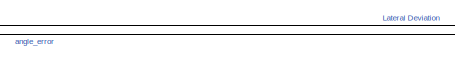
[diagram: root canvas - part 1/6, top center region]
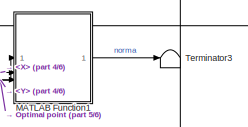
[diagram: root canvas - part 2/6, top right region]
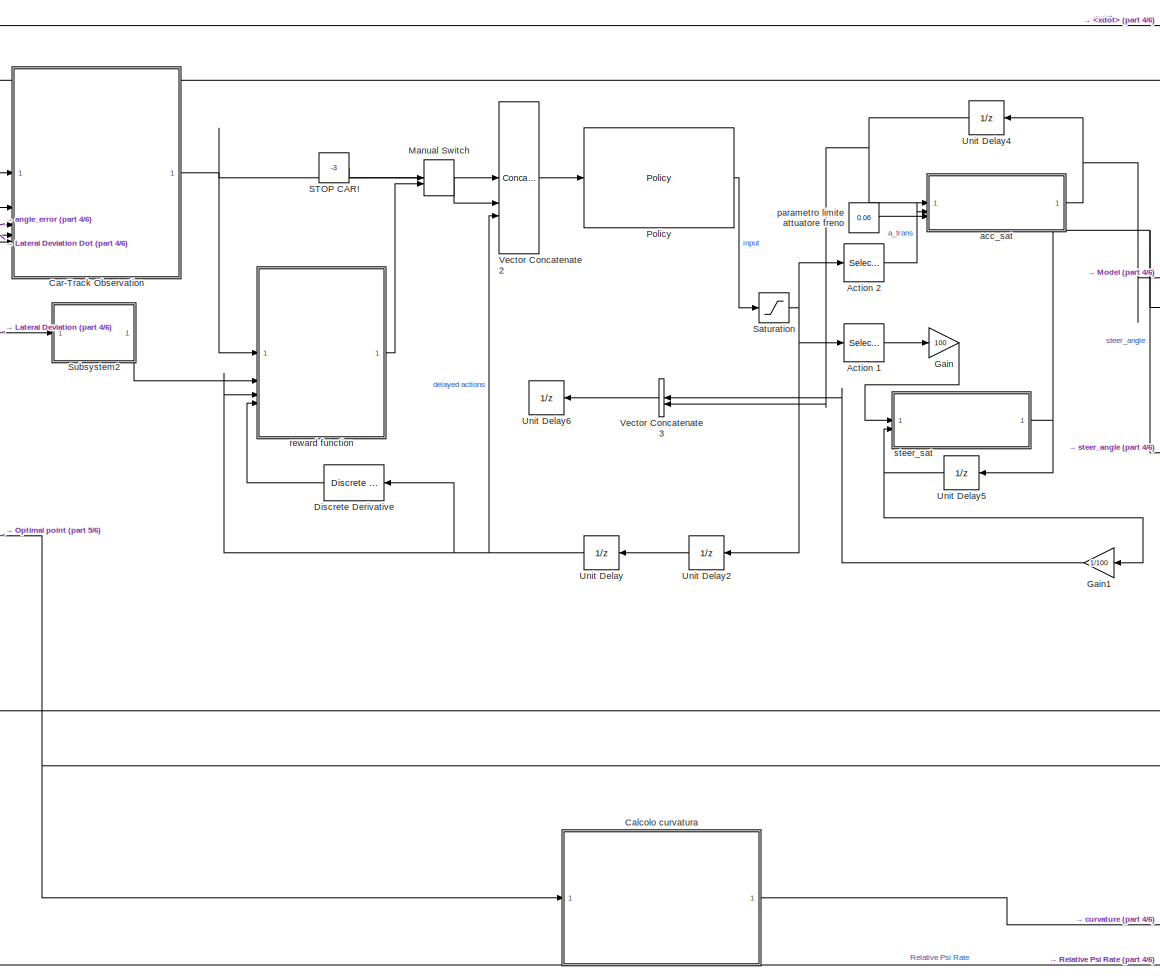
[diagram: root canvas - part 3/6, central region]
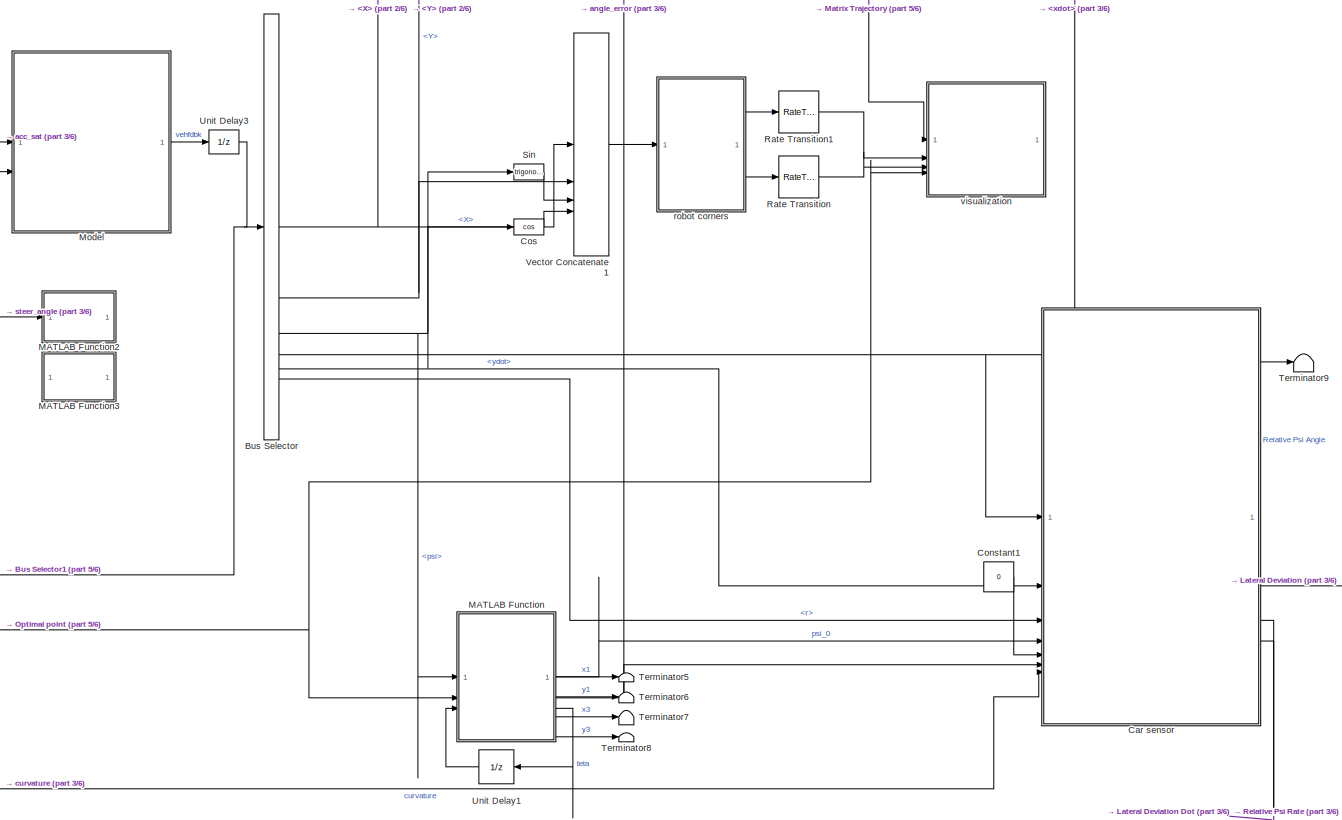
[diagram: root canvas - part 4/6, middle right region]
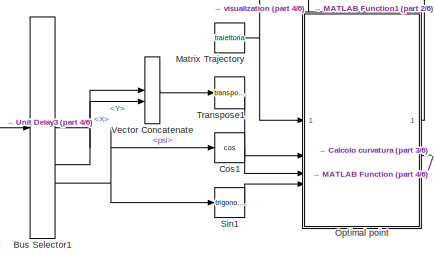
[diagram: root canvas - part 5/6, middle left region]
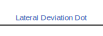
[diagram: root canvas - part 6/6, bottom center region]
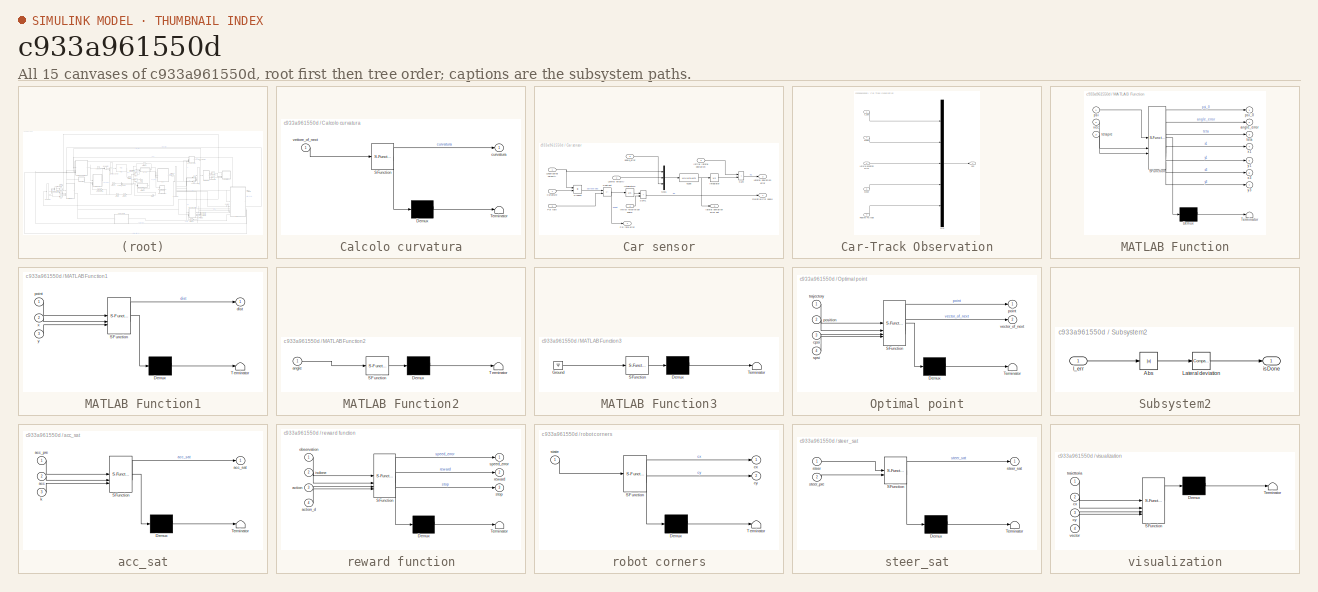
[diagram: thumbnail index - all 15 canvases of the model, root first then tree order]
MODEL slx_c933a961550d
KIND model
CONFIG AbsTol = auto
CONFIG EnableMultiTasking = off
CONFIG FixedStep = 0.05
CONFIG MaxStep = auto
CONFIG MinStep = auto
CONFIG RelTol = 1e-3
CONFIG SampleTimeConstraint = Unconstrained
CONFIG SolverName = VariableStepAuto
CONFIG StartTime = 0.0
CONFIG StopTime = 10
BLOCK [Selector] Action 1
  IndexOptions = Index vector (dialog)
  Indices = 1
  InputPortWidth = 2
  OutputSizes = 1
BLOCK [Selector] Action 2
  IndexOptions = Index vector (dialog)
  Indices = 2
  InputPortWidth = 2
  OutputSizes = 1
BLOCK [BusSelector] Bus Selector
  OutputSignals = InertFrm.Cg.Disp.X,InertFrm.Cg.Disp.Y,InertFrm.Cg.Ang.psi,BdyFrm.Cg.Vel.xdot,BdyFrm.Cg.Vel.ydot,BdyFrm.Cg.AngVel.r
BLOCK [BusSelector] Bus Selector1
  OutputSignals = InertFrm.Cg.Disp.X,InertFrm.Cg.Disp.Y,InertFrm.Cg.Ang.psi
BLOCK [SubSystem] Calcolo curvatura
  ErrorFcn = Stateflow.Translate.translate
  LibrarySourceBlock = simulink/User-Defined\nFunctions/MATLAB Function
  PermitHierarchicalResolution = ExplicitOnly
  SFBlockType = MATLAB Function
  TreatAsAtomicUnit = on
BLOCK [Demux] Calcolo curvatura/ Demux 
  Outputs = 1
BLOCK [S-Function] Calcolo curvatura/ SFunction 
  EnableBusSupport = on
  FunctionName = sf_sfun
  PortCounts = [1 2]
  SFcnIsStateOwnerBlock = off
  SFunctionDeploymentMode = off
  Tag = Stateflow S-Function 7
BLOCK [Terminator] Calcolo curvatura/ Terminator 
BLOCK [Outport] Calcolo curvatura/curvatura
BLOCK [Inport] Calcolo curvatura/vettore_of_next
BLOCK [SubSystem] Car sensor
BLOCK [Inport] Car sensor/Curvature
  Port = 7
BLOCK [Inport] Car sensor/Initial lateral deviation
  Port = 5
BLOCK [Inport] Car sensor/Initial relative psi angle
  Port = 4
BLOCK [Integrator] Car sensor/Integrator
BLOCK [Integrator] Car sensor/Integrator2
BLOCK [Outport] Car sensor/Lateral deviation error
  Port = 2
  VectorParamsAs1DForOutWhenUnconnected = off
BLOCK [Inport] Car sensor/Lateral velocity
  Port = 2
BLOCK [Inport] Car sensor/Longitudinal velocity
BLOCK [Mux] Car sensor/Mux1
  DisplayOption = bar
  Inputs = [1 1 1]
BLOCK [Product] Car sensor/Product
BLOCK [Inport] Car sensor/Psi rate
  Port = 3
BLOCK [Outport] Car sensor/Psi rate error
  Port = 4
  VectorParamsAs1DForOutWhenUnconnected = off
BLOCK [Outport] Car sensor/Relative Psi angle
  VectorParamsAs1DForOutWhenUnconnected = off
BLOCK [Sum] Car sensor/Subtract
  IconShape = rectangular
  Inputs = -+
BLOCK [Sum] Car sensor/Sum
  IconShape = rectangular
BLOCK [Sum] Car sensor/Sum1
  IconShape = rectangular
BLOCK [Inport] Car sensor/angle_error
  Port = 6
BLOCK [Fcn] Car sensor/e1dot
  Expr = u(1)*u(3)+u(2)
BLOCK [Outport] Car sensor/lateral deviation error dot
  Port = 3
  VectorParamsAs1DForOutWhenUnconnected = off
BLOCK [SubSystem] Car-Track Observation
BLOCK [Inport] Car-Track Observation/Lateral deviation error
  Port = 2
BLOCK [Mux] Car-Track Observation/Mux
  DisplayOption = bar
  Inputs = 5
BLOCK [Inport] Car-Track Observation/Relative Psi Angle
  Port = 3
BLOCK [Inport] Car-Track Observation/e1dot
  Port = 4
BLOCK [Inport] Car-Track Observation/e2dot
  Port = 5
BLOCK [Outport] Car-Track Observation/obs
  VectorParamsAs1DForOutWhenUnconnected = off
BLOCK [Inport] Car-Track Observation/x_dot
BLOCK [Constant] Constant1
  Value = 0
BLOCK [Trigonometry] Cos
  Operator = cos
BLOCK [Trigonometry] Cos1
  Operator = cos
BLOCK [Reference] Discrete Derivative  REF=simulink/Discrete/Discrete Derivative
  SourceBlock = simulink/Discrete/Discrete Derivative
  SourceType = Discrete Derivative
BLOCK [Gain] Gain
  Gain = 100
BLOCK [Gain] Gain1
  Gain = 1/100
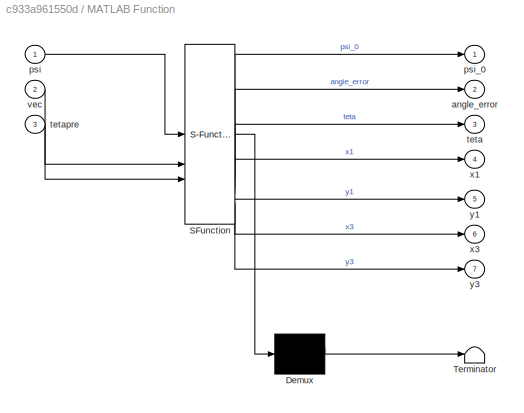
BLOCK [SubSystem] MATLAB Function
  ErrorFcn = Stateflow.Translate.translate
  LibrarySourceBlock = simulink/User-Defined\nFunctions/MATLAB Function
  PermitHierarchicalResolution = ExplicitOnly
  SFBlockType = MATLAB Function
  TreatAsAtomicUnit = on
BLOCK [Demux] MATLAB Function/ Demux 
  Outputs = 1
BLOCK [S-Function] MATLAB Function/ SFunction 
  EnableBusSupport = on
  FunctionName = sf_sfun
  PortCounts = [3 8]
  SFcnIsStateOwnerBlock = off
  SFunctionDeploymentMode = off
  Tag = Stateflow S-Function 1
BLOCK [Terminator] MATLAB Function/ Terminator 
BLOCK [Outport] MATLAB Function/angle_error
  Port = 2
BLOCK [Inport] MATLAB Function/psi
BLOCK [Outport] MATLAB Function/psi_0
BLOCK [Outport] MATLAB Function/teta
  Port = 3
BLOCK [Inport] MATLAB Function/tetapre
  Port = 3
BLOCK [Inport] MATLAB Function/vec
  Port = 2
BLOCK [Outport] MATLAB Function/x1
  Port = 4
BLOCK [Outport] MATLAB Function/x3
  Port = 6
BLOCK [Outport] MATLAB Function/y1
  Port = 5
BLOCK [Outport] MATLAB Function/y3
  Port = 7
BLOCK [SubSystem] MATLAB Function1
  Commented = on
  ErrorFcn = Stateflow.Translate.translate
  LibrarySourceBlock = simulink/User-Defined\nFunctions/MATLAB Function
  PermitHierarchicalResolution = ExplicitOnly
  SFBlockType = MATLAB Function
  TreatAsAtomicUnit = on
BLOCK [Demux] MATLAB Function1/ Demux 
  Outputs = 1
BLOCK [S-Function] MATLAB Function1/ SFunction 
  EnableBusSupport = off
  FunctionName = sf_sfun
  PortCounts = [3 2]
  SFcnIsStateOwnerBlock = off
  SFunctionDeploymentMode = off
  Tag = Stateflow S-Function 6
BLOCK [Terminator] MATLAB Function1/ Terminator 
BLOCK [Outport] MATLAB Function1/dist
BLOCK [Inport] MATLAB Function1/point
BLOCK [Inport] MATLAB Function1/x
  Port = 2
BLOCK [Inport] MATLAB Function1/y
  Port = 3
BLOCK [SubSystem] MATLAB Function2
  ErrorFcn = Stateflow.Translate.translate
  PermitHierarchicalResolution = ExplicitOnly
  SFBlockType = MATLAB Function
  TreatAsAtomicUnit = on
BLOCK [Demux] MATLAB Function2/ Demux 
  Outputs = 1
BLOCK [S-Function] MATLAB Function2/ SFunction 
  EnableBusSupport = on
  FunctionName = sf_sfun
  PortCounts = [1 1]
  SFcnIsStateOwnerBlock = off
  SFunctionDeploymentMode = off
  Tag = Stateflow S-Function 11
BLOCK [Terminator] MATLAB Function2/ Terminator 
BLOCK [Inport] MATLAB Function2/angle
BLOCK [SubSystem] MATLAB Function3
  ErrorFcn = Stateflow.Translate.translate
  PermitHierarchicalResolution = ExplicitOnly
  SFBlockType = MATLAB Function
  TreatAsAtomicUnit = on
BLOCK [Demux] MATLAB Function3/ Demux 
  Outputs = 1
BLOCK [Ground] MATLAB Function3/ Ground 
BLOCK [S-Function] MATLAB Function3/ SFunction 
  EnableBusSupport = off
  FunctionName = sf_sfun
  PortCounts = [1 1]
  SFcnIsStateOwnerBlock = off
  SFunctionDeploymentMode = off
  Tag = Stateflow S-Function 12
BLOCK [Terminator] MATLAB Function3/ Terminator 
BLOCK [ManualSwitch] Manual Switch
  CurrentSetting = 0
BLOCK [Constant] Matrix Trajectory
  SampleTime = 60
  Value = traiettoria
BLOCK [ModelReference] Model
  ModelNameDialog = Current_Macchina3DOF.slx
  ModelReferenceVersion = 1.72
  PortSchema = {"entries":[{"content":{"sides":[{"content":{"connectorIds":["In2","In1"]},"type":"ConnectorPlacement.EquallySpacedRectSide","uuid":"b5a44853-6584-4a50-847d-9a0b1c5ea9ac"},{"content":{"connectorIds":["Out1"],"side":"RIGHT"},"type":"ConnectorPlacement.EquallySpacedRectSide","uuid":"bfcb6c88-1d93-4f70-bf16-2c719fa247ba"},{"content":{"side":"TOP"},"type":"ConnectorPlacement.EquallySpacedRectSide","uu...<+228ch>
BLOCK [SubSystem] Optimal point
  ErrorFcn = Stateflow.Translate.translate
  LibrarySourceBlock = simulink/User-Defined\nFunctions/MATLAB Function
  PermitHierarchicalResolution = ExplicitOnly
  SFBlockType = MATLAB Function
  TreatAsAtomicUnit = on
BLOCK [Demux] Optimal point/ Demux 
  Outputs = 1
BLOCK [S-Function] Optimal point/ SFunction 
  EnableBusSupport = on
  FunctionName = sf_sfun
  PortCounts = [4 3]
  SFcnIsStateOwnerBlock = off
  SFunctionDeploymentMode = off
  Tag = Stateflow S-Function 3
BLOCK [Terminator] Optimal point/ Terminator 
BLOCK [Inport] Optimal point/cpsi
  Port = 3
BLOCK [Outport] Optimal point/point
BLOCK [Inport] Optimal point/position
  Port = 2
BLOCK [Inport] Optimal point/spsi
  Port = 4
BLOCK [Inport] Optimal point/trajectory
BLOCK [Outport] Optimal point/vector_of_next
  Port = 2
BLOCK [Reference] Policy  REF=rllib/Policy
  SourceBlock = rllib/Policy
  SourceType = Policy
BLOCK [RateTransition] Rate Transition
BLOCK [RateTransition] Rate Transition1
BLOCK [Constant] STOP CAR!
  Value = -3
BLOCK [Saturate] Saturation
  LowerLimit = -1
  UpperLimit = 1
BLOCK [Trigonometry] Sin
BLOCK [Trigonometry] Sin1
BLOCK [SubSystem] Subsystem2
BLOCK [Abs] Subsystem2/Abs
  SaturateOnIntegerOverflow = off
BLOCK [Reference] Subsystem2/Lateral deviation  REF=simulink/Logic and Bit
Operations/Compare
To Constant
  SourceBlock = simulink/Logic and Bit\nOperations/Compare\nTo Constant
  SourceType = Compare To Constant
BLOCK [Outport] Subsystem2/isDone
  VectorParamsAs1DForOutWhenUnconnected = off
BLOCK [Inport] Subsystem2/l_err
BLOCK [Terminator] Terminator3
BLOCK [Terminator] Terminator5
BLOCK [Terminator] Terminator6
BLOCK [Terminator] Terminator7
BLOCK [Terminator] Terminator8
BLOCK [Terminator] Terminator9
BLOCK [Math] Transpose1
  Operator = transpose
BLOCK [UnitDelay] Unit Delay
  HasFrameUpgradeWarning = on
  SampleTime = -1
BLOCK [UnitDelay] Unit Delay1
  HasFrameUpgradeWarning = on
  SampleTime = -1
BLOCK [UnitDelay] Unit Delay2
  HasFrameUpgradeWarning = on
  SampleTime = -1
BLOCK [UnitDelay] Unit Delay3
  HasFrameUpgradeWarning = on
  NameLocation = top
  SampleTime = -1
BLOCK [UnitDelay] Unit Delay4
  HasFrameUpgradeWarning = on
  SampleTime = -1
BLOCK [UnitDelay] Unit Delay5
  HasFrameUpgradeWarning = on
  SampleTime = -1
BLOCK [UnitDelay] Unit Delay6
  HasFrameUpgradeWarning = on
  SampleTime = -1
BLOCK [Concatenate] Vector Concatenate
BLOCK [Concatenate] Vector Concatenate1
  NumInputs = 4
BLOCK [Concatenate] Vector Concatenate2
  NumInputs = 3
BLOCK [Concatenate] Vector Concatenate3
BLOCK [SubSystem] acc_sat
  ErrorFcn = Stateflow.Translate.translate
  LibrarySourceBlock = simulink/User-Defined\nFunctions/MATLAB Function
  PermitHierarchicalResolution = ExplicitOnly
  SFBlockType = MATLAB Function
  TreatAsAtomicUnit = on
BLOCK [Demux] acc_sat/ Demux 
  Outputs = 1
BLOCK [S-Function] acc_sat/ SFunction 
  EnableBusSupport = on
  FunctionName = sf_sfun
  PortCounts = [3 2]
  SFcnIsStateOwnerBlock = off
  SFunctionDeploymentMode = off
  Tag = Stateflow S-Function 9
BLOCK [Terminator] acc_sat/ Terminator 
BLOCK [Inport] acc_sat/acc
  Port = 2
BLOCK [Inport] acc_sat/acc_pre
BLOCK [Outport] acc_sat/acc_sat
BLOCK [Inport] acc_sat/k
  Port = 3
BLOCK [Constant] parametro limite attuatore freno
  Value = 0.06
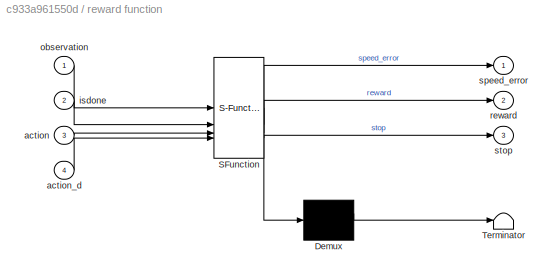
BLOCK [SubSystem] reward function
  ErrorFcn = Stateflow.Translate.translate
  PermitHierarchicalResolution = ExplicitOnly
  SFBlockType = MATLAB Function
  TreatAsAtomicUnit = on
BLOCK [Demux] reward function/ Demux 
  Outputs = 1
BLOCK [S-Function] reward function/ SFunction 
  EnableBusSupport = on
  FunctionName = sf_sfun
  PortCounts = [4 4]
  SFcnIsStateOwnerBlock = off
  SFunctionDeploymentMode = off
  Tag = Stateflow S-Function 2
BLOCK [Terminator] reward function/ Terminator 
BLOCK [Inport] reward function/action
  Port = 3
BLOCK [Inport] reward function/action_d
  Port = 4
BLOCK [Inport] reward function/isdone
  Port = 2
BLOCK [Inport] reward function/observation
BLOCK [Outport] reward function/reward
  Port = 2
BLOCK [Outport] reward function/speed_error
BLOCK [Outport] reward function/stop
  Port = 3
BLOCK [SubSystem] robot corners
  ErrorFcn = Stateflow.Translate.translate
  PermitHierarchicalResolution = ExplicitOnly
  SFBlockType = MATLAB Function
  TreatAsAtomicUnit = on
BLOCK [Demux] robot corners/ Demux 
  Outputs = 1
BLOCK [S-Function] robot corners/ SFunction 
  EnableBusSupport = on
  FunctionName = sf_sfun
  Parameters = h,w
  PortCounts = [1 3]
  SFcnIsStateOwnerBlock = off
  SFunctionDeploymentMode = off
  Tag = Stateflow S-Function 4
BLOCK [Terminator] robot corners/ Terminator 
BLOCK [Outport] robot corners/cx
BLOCK [Outport] robot corners/cy
  Port = 2
BLOCK [Inport] robot corners/state
BLOCK [SubSystem] steer_sat
  ErrorFcn = Stateflow.Translate.translate
  LibrarySourceBlock = simulink/User-Defined\nFunctions/MATLAB Function
  PermitHierarchicalResolution = ExplicitOnly
  SFBlockType = MATLAB Function
  TreatAsAtomicUnit = on
BLOCK [Demux] steer_sat/ Demux 
  Outputs = 1
BLOCK [S-Function] steer_sat/ SFunction 
  EnableBusSupport = on
  FunctionName = sf_sfun
  PortCounts = [2 2]
  SFcnIsStateOwnerBlock = off
  SFunctionDeploymentMode = off
  Tag = Stateflow S-Function 8
BLOCK [Terminator] steer_sat/ Terminator 
BLOCK [Inport] steer_sat/steer
BLOCK [Inport] steer_sat/steer_pre
  Port = 2
BLOCK [Outport] steer_sat/steer_sat
BLOCK [SubSystem] visualization
  ErrorFcn = Stateflow.Translate.translate
  PermitHierarchicalResolution = ExplicitOnly
  SFBlockType = MATLAB Function
  TreatAsAtomicUnit = on
BLOCK [Demux] visualization/ Demux 
  Outputs = 1
BLOCK [S-Function] visualization/ SFunction 
  EnableBusSupport = on
  FunctionName = sf_sfun
  PortCounts = [4 1]
  SFcnIsStateOwnerBlock = off
  SFunctionDeploymentMode = off
  Tag = Stateflow S-Function 5
BLOCK [Terminator] visualization/ Terminator 
BLOCK [Inport] visualization/cx
  Port = 2
BLOCK [Inport] visualization/cy
  Port = 3
BLOCK [Inport] visualization/traiettoria
BLOCK [Inport] visualization/vector
  Port = 4
LINE Action 1:1 -> Gain:1
LINE Action 2:1 -> acc_sat:2
LINE Bus Selector1:1 -> Vector Concatenate:1
LINE Bus Selector1:2 -> Vector Concatenate:2
NET Bus Selector1:3 -> Cos1:1, Sin1:1
NET Bus Selector:1 -> MATLAB Function1:2, Vector Concatenate1:1
NET Bus Selector:2 -> MATLAB Function1:3, Vector Concatenate1:2
NET Bus Selector:3 -> Cos:1, MATLAB Function:1, Sin:1
NET Bus Selector:4 -> Car sensor:1, Car-Track Observation:1
LINE Bus Selector:5 -> Car sensor:2
LINE Bus Selector:6 -> Car sensor:3
LINE Calcolo curvatura:1 -> Car sensor:7
LINE Car sensor/Curvature:1 -> Car sensor/Product:2
LINE Car sensor/Initial lateral deviation:1 -> Car sensor/Sum:1
LINE Car sensor/Initial relative psi angle:1 -> Car sensor/Sum1:2
LINE Car sensor/Integrator2:1 -> Car sensor/Sum1:1
LINE Car sensor/Integrator:1 -> Car sensor/Sum:2
LINE Car sensor/Lateral velocity:1 -> Car sensor/Mux1:2
NET Car sensor/Longitudinal velocity:1 -> Car sensor/Mux1:1, Car sensor/Product:1
LINE Car sensor/Mux1:1 -> Car sensor/e1dot:1
LINE Car sensor/Product:1 -> Car sensor/Subtract:1
LINE Car sensor/Psi rate:1 -> Car sensor/Subtract:2
NET Car sensor/Subtract:1 -> Car sensor/Integrator2:1, Car sensor/Psi rate error:1
LINE Car sensor/Sum1:1 -> Car sensor/Relative Psi angle:1
LINE Car sensor/Sum:1 -> Car sensor/Lateral deviation error:1
LINE Car sensor/angle_error:1 -> Car sensor/Mux1:3
NET Car sensor/e1dot:1 -> Car sensor/Integrator:1, Car sensor/lateral deviation error dot:1
LINE Car sensor:1 -> Terminator9:1
NET Car sensor:2 -> Car-Track Observation:2, Subsystem2:1
LINE Car sensor:3 -> Car-Track Observation:4
LINE Car sensor:4 -> Car-Track Observation:5
LINE Car-Track Observation/Lateral deviation error:1 -> Car-Track Observation/Mux:3
LINE Car-Track Observation/Mux:1 -> Car-Track Observation/obs:1
LINE Car-Track Observation/Relative Psi Angle:1 -> Car-Track Observation/Mux:5
LINE Car-Track Observation/e1dot:1 -> Car-Track Observation/Mux:2
LINE Car-Track Observation/e2dot:1 -> Car-Track Observation/Mux:4
LINE Car-Track Observation/x_dot:1 -> Car-Track Observation/Mux:1
NET Car-Track Observation:1 -> Vector Concatenate2:1, reward function:1
LINE Constant1:1 -> Car sensor:5
LINE Cos1:1 -> Optimal point:3
LINE Cos:1 -> Vector Concatenate1:4
LINE Discrete Derivative:1 -> reward function:4
LINE Gain1:1 -> Vector Concatenate3:1
LINE Gain:1 -> steer_sat:1
LINE MATLAB Function1:1 -> Terminator3:1
LINE MATLAB Function:1 -> Car sensor:4
NET MATLAB Function:2 -> Car sensor:6, Car-Track Observation:3
LINE MATLAB Function:3 -> Unit Delay1:1
LINE MATLAB Function:4 -> Terminator5:1
LINE MATLAB Function:5 -> Terminator6:1
LINE MATLAB Function:6 -> Terminator7:1
LINE MATLAB Function:7 -> Terminator8:1
LINE Manual Switch:1 -> Vector Concatenate2:2
NET Matrix Trajectory:1 -> Optimal point:1, visualization:1
LINE Model:1 -> Unit Delay3:1
LINE Optimal point:1 -> MATLAB Function1:1
NET Optimal point:2 -> Calcolo curvatura:1, MATLAB Function:2, visualization:4
LINE Policy:1 -> Saturation:1
LINE Rate Transition1:1 -> visualization:2
LINE Rate Transition:1 -> visualization:3
LINE STOP CAR!:1 -> Manual Switch:1
NET Saturation:1 -> Action 1:1, Action 2:1, Unit Delay2:1
LINE Sin1:1 -> Optimal point:4
LINE Sin:1 -> Vector Concatenate1:3
LINE Subsystem2/Abs:1 -> Subsystem2/Lateral deviation:1
LINE Subsystem2/Lateral deviation:1 -> Subsystem2/isDone:1
LINE Subsystem2/l_err:1 -> Subsystem2/Abs:1
LINE Subsystem2:1 -> reward function:2
LINE Transpose1:1 -> Optimal point:2
LINE Unit Delay1:1 -> MATLAB Function:3
LINE Unit Delay2:1 -> Unit Delay:1
NET Unit Delay3:1 -> Bus Selector1:1, Bus Selector:1
NET Unit Delay4:1 -> Vector Concatenate3:2, acc_sat:1
NET Unit Delay5:1 -> Gain1:1, steer_sat:2
NET Unit Delay:1 -> Discrete Derivative:1, Vector Concatenate2:3, reward function:3
LINE Vector Concatenate1:1 -> robot corners:1
LINE Vector Concatenate2:1 -> Policy:1
LINE Vector Concatenate3:1 -> Unit Delay6:1
LINE Vector Concatenate:1 -> Transpose1:1
NET acc_sat:1 -> Model:1, Unit Delay4:1
LINE parametro limite attuatore freno:1 -> acc_sat:3
LINE reward function:1 -> Manual Switch:2
LINE robot corners:1 -> Rate Transition1:1
LINE robot corners:2 -> Rate Transition:1
NET steer_sat:1 -> MATLAB Function2:1, Model:2, Unit Delay5:1
note: NET lines group one-source signal fan-out (src -> all destinations, sorted); 1:1 wires keep LINE
CHART MATLAB Function1 states=1 transitions=1
  STATE_LABEL 'eML_blk_kernel()'
  STATE_LABEL 'SCRIPT:\nfunction dist = fcn(point,x,y)\n\ndist=sqrt((point(1)-x)^2+(point(2)-y)^2);\n\nend'
CHART Calcolo curvatura states=1 transitions=1
  STATE_LABEL 'eML_blk_kernel()'
  STATE_LABEL 'SCRIPT:\nfunction curvatura = calcola_curvatura(vettore_of_next)\n    % Input:\n    %   vettore_of_next: 3x2 matrix containing three points on the curve\n    % Output:\n    %   curvatura: vector containing the calculated curvature values\n\n    % Extract x and y coordinates from the curve points\n    x = vettore_of_next(:, 1);\n    y = vettore_of_next(:, 2);\n\n    % Calculate the first derivatives of x and ...<+558ch>'
CHART steer_sat states=1 transitions=1
  STATE_LABEL 'eML_blk_kernel()'
  STATE_LABEL 'SCRIPT:\nfunction steer_sat = Sat_steer(steer,steer_pre)\n    steer_sat=steer;\n    if(steer-steer_pre>5)\n        steer_sat=steer_pre+5;\n    elseif(steer-steer_pre<-5)\n        steer_sat=steer_pre-5;\n\n    end\nend\n'
CHART acc_sat states=1 transitions=1
  STATE_LABEL 'eML_blk_kernel()'
  STATE_LABEL 'SCRIPT:\nfunction acc_sat = Sat_acc(acc_pre,acc,k)\n    if(acc<0 && acc_pre<=0)\n        acc_sat=acc;\n        if(acc-acc_pre>k)\n            acc_sat=acc_pre+k;\n        elseif (acc-acc_pre<-k)\n            acc_sat=acc_pre-k;\n        end\n\n    elseif(acc<0 && acc_pre>0)\n        acc_sat=acc;\n        if(acc-acc_pre>k)\n           acc_sat=0;\n        elseif (acc-acc_pre<-k)\n            acc_sat=0;        \n     ...<+361ch>'
CHART MATLAB Function2 states=1 transitions=1
  STATE_LABEL 'eML_blk_kernel()'
  STATE_LABEL "SCRIPT:\nfunction sendSerial(angle)\n%#codegen\ncoder.extrinsic('manageSerial');\n\n% Open the serial port if not already opened\nmanageSerial(0, 'open');\n\n% Send the angle data\nmanageSerial(angle, 'write');\n"
CHART MATLAB Function3 states=1 transitions=1
  STATE_LABEL 'eML_blk_kernel()'
  STATE_LABEL "SCRIPT:\nfunction closeSerial()\n%#codegen\ncoder.extrinsic('manageSerial');\n\n% Close the serial port\nmanageSerial(0, 'close');\n"
CHART MATLAB Function states=1 transitions=1
  STATE_LABEL 'eML_blk_kernel()'
  STATE_LABEL "SCRIPT:\nfunction [psi_0,angle_error,teta,x1,y1,x3,y3] = fcn(psi,vec,tetapre)\n    x1=vec(1,1);\n    y1=vec(1,2);\n    x3=vec(3,1);\n    y3=vec(3,2);\n    teta=atan2((y3-y1),(x3-x1));\n\n\n     if(abs(tetapre-teta)>pi/4 && abs(tetapre-teta)<1.1*pi)%ATTENZIONE: PROVVISORIO PER RISOLVERE IL PROBLEMA DELL'INCROCIO\n         teta=tetapre;\n     end\n\n\n\n    angle_error=psi-teta;\n    if angle_error>pi\n        angle...<+230ch>"
CHART reward function states=1 transitions=1
  STATE_LABEL 'eML_blk_kernel()'
  STATE_LABEL 'SCRIPT:\nfunction [speed_error, reward, stop] = reward(observation, isdone, action, action_d)\n    % Input:\n    %   observation: vector containing relevant state information\n    %   isdone: flag indicating whether the episode is finished\n    %   action: vector representing the action taken\n    %   action_d: vector representing the action derivatives\n    % Output:\n    %   speed_error: computed speed ...<+1252ch>'
CHART Optimal point states=1 transitions=1
  STATE_LABEL 'eML_blk_kernel()'
  STATE_LABEL 'SCRIPT:\nfunction [point, vector_of_next] = optimalpoint(trajectory, position, cpsi, spsi)\n    % Input:\n    %   trajectory: Nx2 matrix representing the trajectory points\n    %   position: 1x2 row vector representing the current position (xy)\n    %   cpsi, spsi: components of the velocity direction\n    % Output:\n    %   point: 1x2 row vector representing the optimal point on the trajectory\n    %   v...<+1607ch>'
CHART robot corners states=1 transitions=1
  STATE_LABEL 'eML_blk_kernel()'
  STATE_LABEL 'SCRIPT:\nfunction [cx,cy] = getcorners(state,h,w)\n\n    % preallocate outputs\n    % cx = zeros(4,1);\n    % cy = zeros(4,1);\n    \n    % extract individual components\n    x = state(1);\n    y = state(2);\n    s = state(3);\n    c = state(4);\n    \n    % four corners\n    p = [h,-h,-h,h;w,w,-w,-w]/2;\n    \n    % rotation matrix\n    M = [c,-s;s,c];\n    \n    % rotate points\n    p = M*p;\n    % translate and ext...<+75ch>'
CHART visualization states=1 transitions=1
  STATE_LABEL 'eML_blk_kernel()'
  STATE_LABEL 'SCRIPT:\nfunction drawEnvironment(traiettoria,cx,cy,vector)\npoint=vector(end,:);\ncoder.extrinsic("plotRobot");\nplotRobot(cx,cy,point,traiettoria);'
CHART  states=0 transitions=0
CHART  states=0 transitions=0
CHART  states=0 transitions=0
CHART  states=0 transitions=0
CHART  states=0 transitions=0
CHART  states=0 transitions=0
CHART  states=0 transitions=0
CHART  states=0 transitions=0
CHART  states=0 transitions=0
CHART  states=0 transitions=0
CHART  states=0 transitions=0
